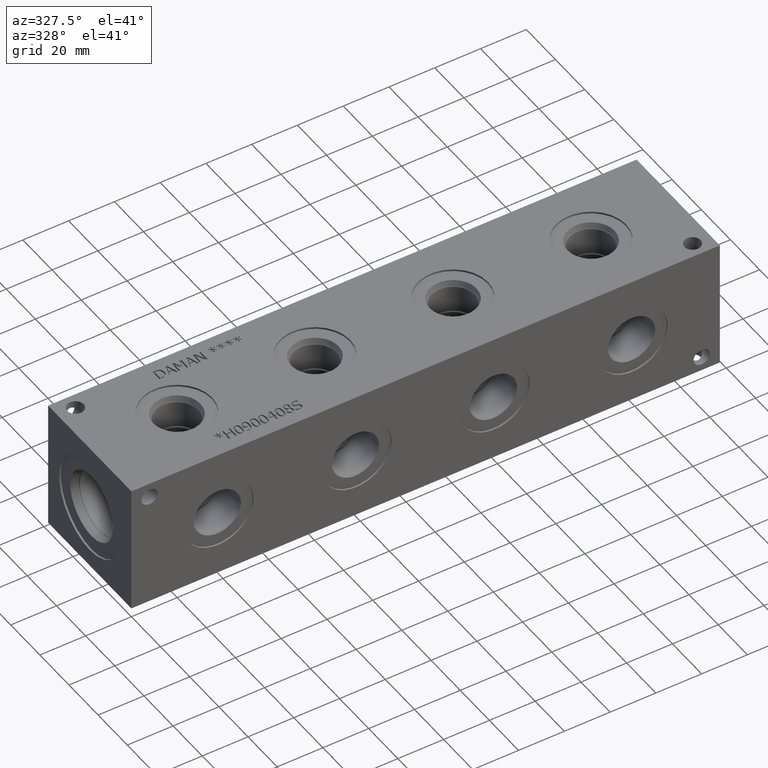
[diagram: clean part render]
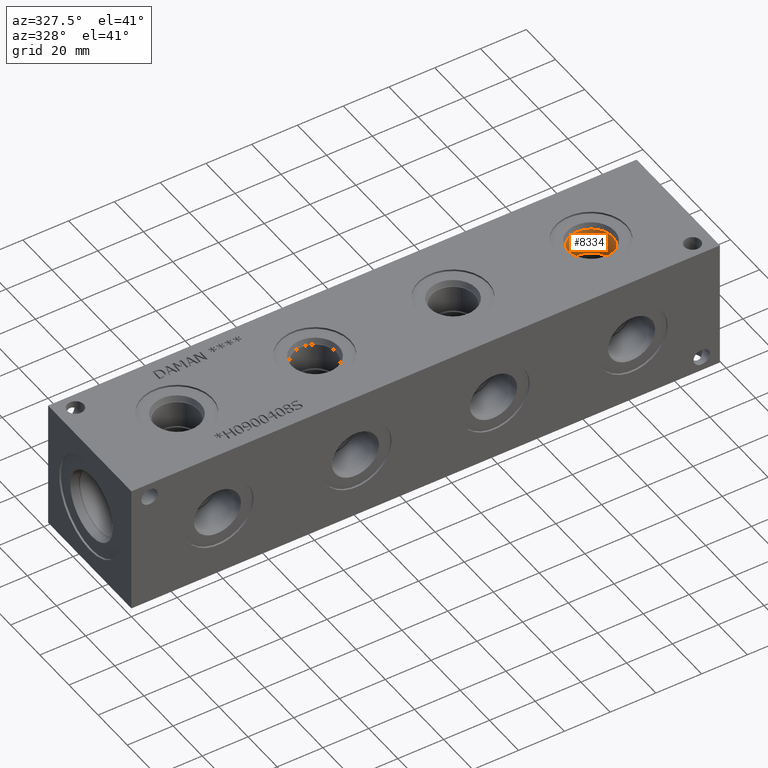
[diagram: same view with one face highlighted and labeled with its STEP entity id]
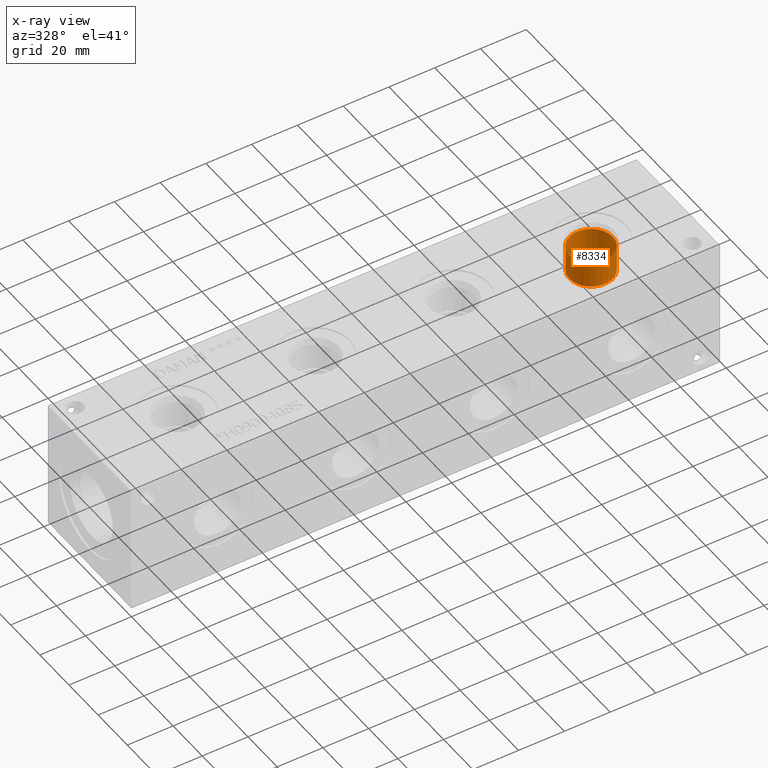
[diagram: x-ray of the same camera — body ghosted, the highlighted face saturated]
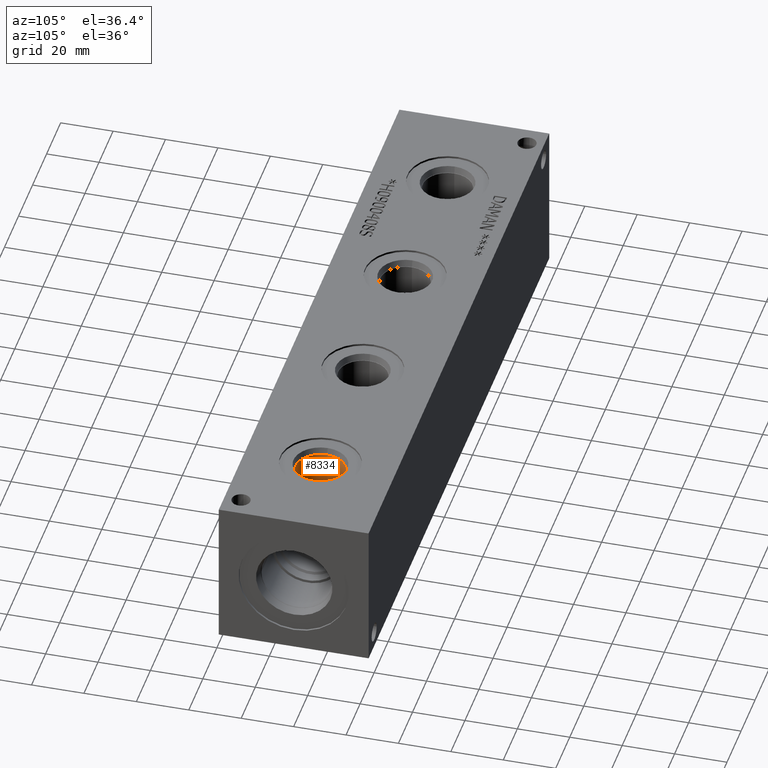
[diagram: same view with one face highlighted and labeled with its STEP entity id]
A machine part, auxiliary view. The second image highlights one B-rep face of the part: STEP entity #8334.
The next image is the same camera in x-ray: the body ghosted, the highlighted face saturated — about 0% of this face is hidden behind the body in this view.
A second angle (auxiliary view) of the same face is appended — the face is thin or edge-on in the first view.
In plain terms, the highlighted cylindrical surface (bore or boss wall) has radius 9.525 mm, axis along (0, 0, 1).
Its self-contained STEP definition (entity closure, byte-faithful):
#102=CYLINDRICAL_SURFACE('',#8838,9.525);
#244=CIRCLE('',#8790,9.525);
#271=CIRCLE('',#8836,9.525);
#272=CIRCLE('',#8837,9.525);
#998=FACE_OUTER_BOUND('',#1478,.T.);
#1478=EDGE_LOOP('',(#7397,#7398,#7399,#7400,#7401));
#2227=LINE('',#14482,#2960);
#2960=VECTOR('',#10535,9.525);
#3955=VERTEX_POINT('',#14385);
#3985=VERTEX_POINT('',#14477);
#3986=VERTEX_POINT('',#14478);
#5096=EDGE_CURVE('',#3955,#3955,#244,.T.);
#5138=EDGE_CURVE('',#3985,#3986,#271,.T.);
#5139=EDGE_CURVE('',#3986,#3985,#272,.T.);
#5140=EDGE_CURVE('',#3955,#3986,#2227,.T.);
#7397=ORIENTED_EDGE('',*,*,#5096,.T.);
#7398=ORIENTED_EDGE('',*,*,#5140,.T.);
#7399=ORIENTED_EDGE('',*,*,#5138,.F.);
#7400=ORIENTED_EDGE('',*,*,#5139,.F.);
#7401=ORIENTED_EDGE('',*,*,#5140,.F.);
#8334=ADVANCED_FACE('',(#998),#102,.F.);
#8790=AXIS2_PLACEMENT_3D('',#14387,#10422,#10423);
#8836=AXIS2_PLACEMENT_3D('',#14479,#10529,#10530);
#8837=AXIS2_PLACEMENT_3D('',#14480,#10531,#10532);
#8838=AXIS2_PLACEMENT_3D('',#14481,#10533,#10534);
#10422=DIRECTION('center_axis',(0.,0.,1.));
#10423=DIRECTION('ref_axis',(1.,0.,0.));
#10529=DIRECTION('center_axis',(0.,0.,1.));
#10530=DIRECTION('ref_axis',(1.,0.,0.));
#10531=DIRECTION('center_axis',(0.,0.,1.));
#10532=DIRECTION('ref_axis',(1.,0.,0.));
#10533=DIRECTION('center_axis',(0.,0.,1.));
#10534=DIRECTION('ref_axis',(1.,0.,0.));
#10535=DIRECTION('',(0.,0.,-1.));
#14385=CARTESIAN_POINT('',(209.55,28.575,53.7464));
#14387=CARTESIAN_POINT('Origin',(219.075,28.575,53.7464));
#14477=CARTESIAN_POINT('',(228.6,28.575,42.0878));
#14478=CARTESIAN_POINT('',(209.55,28.575,42.0878));
#14479=CARTESIAN_POINT('Origin',(219.075,28.575,42.0878));
#14480=CARTESIAN_POINT('Origin',(219.075,28.575,42.0878));
#14481=CARTESIAN_POINT('Origin',(219.075,28.575,49.6189));
#14482=CARTESIAN_POINT('',(209.55,28.575,49.6189));